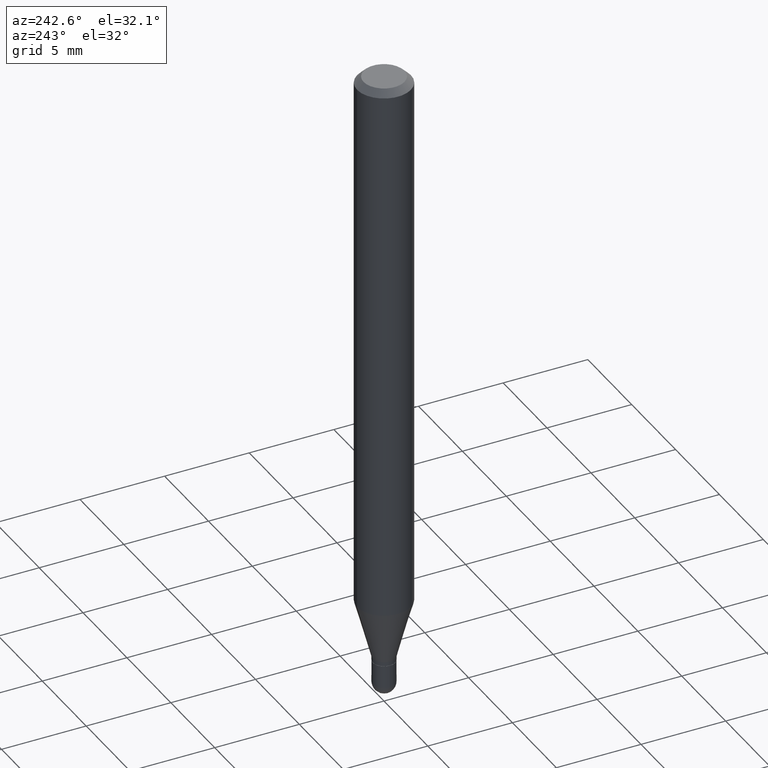
[diagram: clean part render]
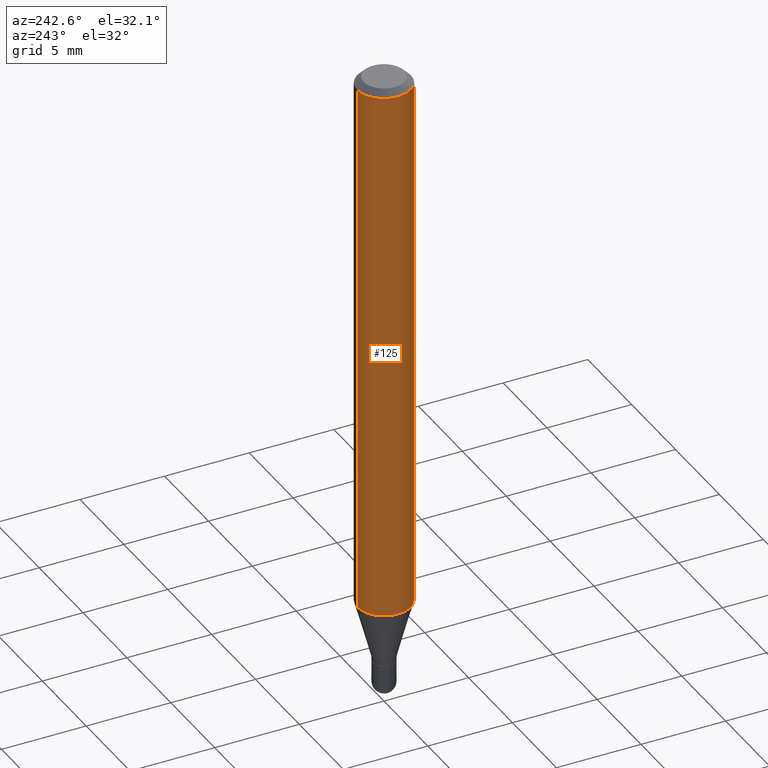
[diagram: same view with one face highlighted and labeled with its STEP entity id]
A machine part, auxiliary view. The second image highlights one B-rep face of the part: STEP entity #125.
In plain terms, the highlighted cylindrical surface (edge-blend (fillet) strip) has radius 1.5875 mm, axis along (-0, 0, 1).
Its self-contained STEP definition (entity closure, byte-faithful):
#25 = EDGE_CURVE ( 'NONE', #257, #254, #203, .T. ) ;
#42 = CARTESIAN_POINT ( 'NONE',  ( 0.000000000000000000, 0.000000000000000000, 0.000000000000000000 ) ) ;
#54 = CIRCLE ( 'NONE', #122, 0.06250000000000000000 ) ;
#72 = CARTESIAN_POINT ( 'NONE',  ( 4.440892098500939734E-16, 0.06249999999999995143, -0.01500000000000054588 ) ) ;
#88 = CYLINDRICAL_SURFACE ( 'NONE', #459, 0.06250000000000000000 ) ;
#122 = AXIS2_PLACEMENT_3D ( 'NONE', #245, #325, #405 ) ;
#125 = ADVANCED_FACE ( 'NONE', ( #436 ), #88, .T. ) ;
#155 = AXIS2_PLACEMENT_3D ( 'NONE', #289, #248, #209 ) ;
#186 = CARTESIAN_POINT ( 'NONE',  ( -4.364351673553916201E-16, -0.06250000000000000000, 2.182185038486174958E-16 ) ) ;
#203 = CIRCLE ( 'NONE', #155, 0.06250000000000000000 ) ;
#206 = CARTESIAN_POINT ( 'NONE',  ( 4.440892098500935790E-16, 0.06249999999999552441, -1.275780145523737197 ) ) ;
#209 = DIRECTION ( 'NONE',  ( -6.982962677686265922E-15, -1.000000000000000000, 3.483106191921935554E-15 ) ) ;
#214 = EDGE_CURVE ( 'NONE', #297, #254, #371, .T. ) ;
#245 = CARTESIAN_POINT ( 'NONE',  ( 3.119867433348925085E-29, -4.454381353535382076E-15, -1.275780145523736753 ) ) ;
#248 = DIRECTION ( 'NONE',  ( -2.445458525354420395E-29, 3.491496061577879933E-15, 1.000000000000000000 ) ) ;
#254 = VERTEX_POINT ( 'NONE', #450 ) ;
#257 = VERTEX_POINT ( 'NONE', #72 ) ;
#261 = DIRECTION ( 'NONE',  ( -2.445458525354420395E-29, 3.491496061577879933E-15, 1.000000000000000000 ) ) ;
#263 = EDGE_LOOP ( 'NONE', ( #377, #499, #369, #493 ) ) ;
#286 = DIRECTION ( 'NONE',  ( -2.445458525354420395E-29, 3.491496061577879933E-15, 1.000000000000000000 ) ) ;
#289 = CARTESIAN_POINT ( 'NONE',  ( 3.668187788031710974E-31, -5.237244092366934457E-17, -0.01500000000000032904 ) ) ;
#297 = VERTEX_POINT ( 'NONE', #313 ) ;
#306 = DIRECTION ( 'NONE',  ( -2.445458525354420395E-29, 3.491496061577879933E-15, 1.000000000000000000 ) ) ;
#309 = DIRECTION ( 'NONE',  ( -6.982962677686265922E-15, -1.000000000000000000, 3.491496061577879933E-15 ) ) ;
#313 = CARTESIAN_POINT ( 'NONE',  ( -4.364351673553606080E-16, -0.06250000000000446865, -1.275780145523736531 ) ) ;
#322 = EDGE_CURVE ( 'NONE', #379, #257, #434, .T. ) ;
#324 = VECTOR ( 'NONE', #286, 39.37007874015748143 ) ;
#325 = DIRECTION ( 'NONE',  ( -2.445458525354420395E-29, 3.491496061577879933E-15, 1.000000000000000000 ) ) ;
#369 = ORIENTED_EDGE ( 'NONE', *, *, #214, .T. ) ;
#371 = LINE ( 'NONE', #186, #449 ) ;
#377 = ORIENTED_EDGE ( 'NONE', *, *, #322, .F. ) ;
#379 = VERTEX_POINT ( 'NONE', #206 ) ;
#405 = DIRECTION ( 'NONE',  ( -6.982962677686265922E-15, -1.000000000000000000, 4.370956789862821150E-15 ) ) ;
#434 = LINE ( 'NONE', #511, #324 ) ;
#436 = FACE_OUTER_BOUND ( 'NONE', #263, .T. ) ;
#449 = VECTOR ( 'NONE', #261, 39.37007874015748143 ) ;
#450 = CARTESIAN_POINT ( 'NONE',  ( -4.364351673553912750E-16, -0.06250000000000005551, -0.01500000000000011047 ) ) ;
#459 = AXIS2_PLACEMENT_3D ( 'NONE', #42, #306, #309 ) ;
#493 = ORIENTED_EDGE ( 'NONE', *, *, #25, .F. ) ;
#499 = ORIENTED_EDGE ( 'NONE', *, *, #502, .T. ) ;
#502 = EDGE_CURVE ( 'NONE', #379, #297, #54, .T. ) ;
#511 = CARTESIAN_POINT ( 'NONE',  ( 4.440892098500625669E-16, 0.06250000000000000000, -2.182185038486174958E-16 ) ) ;